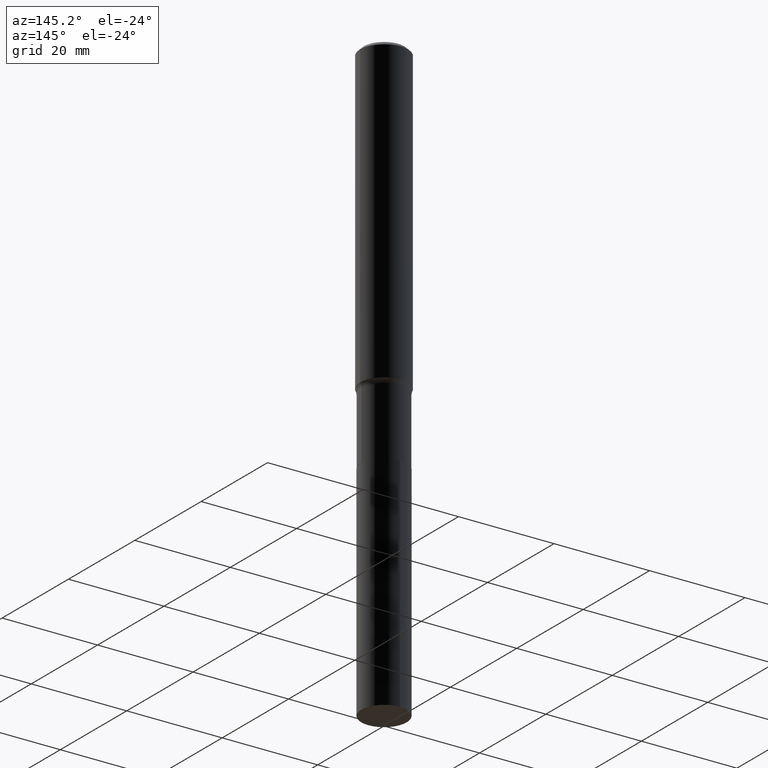
[diagram: clean part render]
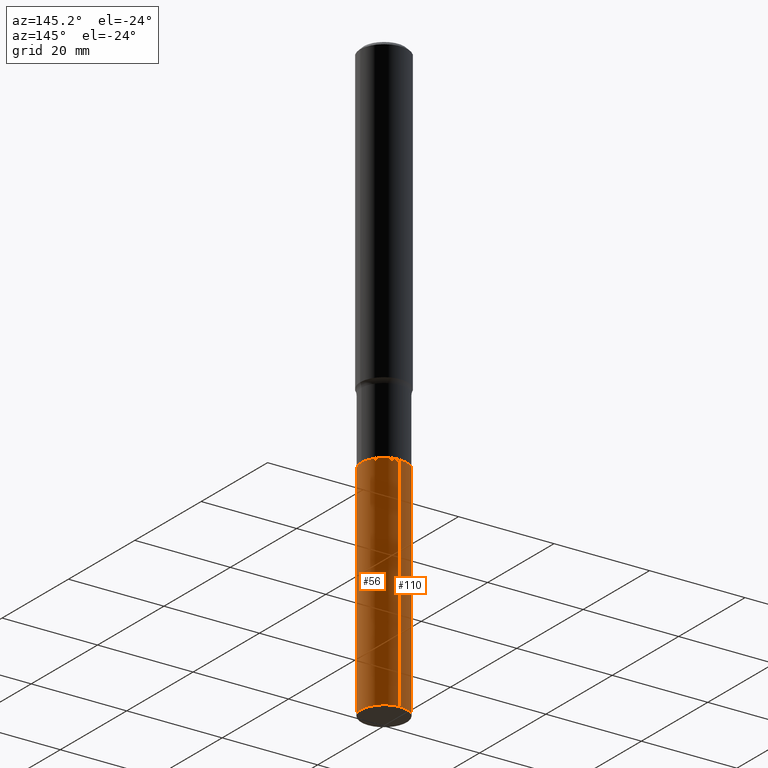
[diagram: same view with one multi-face feature highlighted, each face labeled with its STEP entity id]
A machine part, auxiliary view. The highlighted faces form ONE feature: a constant-radius fillet chain: 2 tangent blend faces with common blend radius 4.7498 mm. The faces share edges in the B-rep.
Their STEP definitions:
[1] entity #56 (Cylinder):
#3 = CARTESIAN_POINT ( 'NONE',  ( -1.305814020727256468E-15, -0.1870000000000107965, -3.090299999999999159 ) ) ;
#4 = DIRECTION ( 'NONE',  ( -6.982962677686266711E-15, -1.000000000000000000, 2.921762560068730595E-15 ) ) ;
#6 = AXIS2_PLACEMENT_3D ( 'NONE', #420, #249, #244 ) ;
#24 = EDGE_CURVE ( 'NONE', #284, #422, #31, .T. ) ;
#28 = EDGE_CURVE ( 'NONE', #422, #200, #141, .T. ) ;
#29 = FACE_OUTER_BOUND ( 'NONE', #409, .T. ) ;
#31 = CIRCLE ( 'NONE', #6, 0.1869999999999999996 ) ;
#36 = CARTESIAN_POINT ( 'NONE',  ( 1.328714915871507843E-15, 0.1869999999999892304, -3.090300000000000047 ) ) ;
#42 = CARTESIAN_POINT ( 'NONE',  ( 7.557232251753925568E-29, -1.078972478142697173E-14, -3.090299999999999603 ) ) ;
#54 = CIRCLE ( 'NONE', #132, 0.1869999999999999996 ) ;
#56 = ADVANCED_FACE ( 'NONE', ( #29 ), #172, .T. ) ;
#77 = DIRECTION ( 'NONE',  ( -2.445466127994541976E-29, 3.491485174164510259E-15, 1.000000000000000000 ) ) ;
#115 = DIRECTION ( 'NONE',  ( -2.445466127994541976E-29, 3.491485174164510259E-15, 1.000000000000000000 ) ) ;
#118 = ORIENTED_EDGE ( 'NONE', *, *, #28, .T. ) ;
#120 = ORIENTED_EDGE ( 'NONE', *, *, #24, .T. ) ;
#122 = VERTEX_POINT ( 'NONE', #3 ) ;
#123 = VECTOR ( 'NONE', #115, 39.37007874015748143 ) ;
#132 = AXIS2_PLACEMENT_3D ( 'NONE', #42, #77, #4 ) ;
#141 = LINE ( 'NONE', #425, #166 ) ;
#166 = VECTOR ( 'NONE', #311, 39.37007874015748143 ) ;
#170 = CARTESIAN_POINT ( 'NONE',  ( 7.557232251753925568E-29, -1.078972478142697173E-14, -3.090299999999999603 ) ) ;
#172 = CYLINDRICAL_SURFACE ( 'NONE', #299, 0.1869999999999999996 ) ;
#200 = VERTEX_POINT ( 'NONE', #36 ) ;
#218 = CARTESIAN_POINT ( 'NONE',  ( -1.305814020727211503E-15, -0.1870000000000171803, -4.921299999999999564 ) ) ;
#244 = DIRECTION ( 'NONE',  ( -6.982962677686266711E-15, -1.000000000000000000, 5.843525120137461189E-15 ) ) ;
#249 = DIRECTION ( 'NONE',  ( -2.445466127994541976E-29, 3.491485174164510259E-15, 1.000000000000000000 ) ) ;
#263 = CARTESIAN_POINT ( 'NONE',  ( 1.328714915871484966E-15, 0.1869999999999828466, -4.921300000000002228 ) ) ;
#264 = ORIENTED_EDGE ( 'NONE', *, *, #412, .F. ) ;
#284 = VERTEX_POINT ( 'NONE', #218 ) ;
#290 = ORIENTED_EDGE ( 'NONE', *, *, #439, .F. ) ;
#299 = AXIS2_PLACEMENT_3D ( 'NONE', #170, #322, #317 ) ;
#311 = DIRECTION ( 'NONE',  ( -2.445466127994541976E-29, 3.491485174164510259E-15, 1.000000000000000000 ) ) ;
#317 = DIRECTION ( 'NONE',  ( -6.982962677686266711E-15, -1.000000000000000000, 2.921762560068730595E-15 ) ) ;
#322 = DIRECTION ( 'NONE',  ( -2.445466127994541976E-29, 3.491485174164510259E-15, 1.000000000000000000 ) ) ;
#333 = LINE ( 'NONE', #428, #123 ) ;
#409 = EDGE_LOOP ( 'NONE', ( #120, #118, #264, #290 ) ) ;
#412 = EDGE_CURVE ( 'NONE', #122, #200, #54, .T. ) ;
#420 = CARTESIAN_POINT ( 'NONE',  ( 1.203488073211193522E-28, -1.718263413532219501E-14, -4.921300000000000452 ) ) ;
#422 = VERTEX_POINT ( 'NONE', #263 ) ;
#425 = CARTESIAN_POINT ( 'NONE',  ( 1.328714915871462681E-15, 0.1869999999999892304, -3.090300000000000047 ) ) ;
#428 = CARTESIAN_POINT ( 'NONE',  ( -1.305814020727256468E-15, -0.1870000000000107965, -3.090299999999999159 ) ) ;
#439 = EDGE_CURVE ( 'NONE', #284, #122, #333, .T. ) ;
[2] entity #110 (Cylinder):
#3 = CARTESIAN_POINT ( 'NONE',  ( -1.305814020727256468E-15, -0.1870000000000107965, -3.090299999999999159 ) ) ;
#7 = AXIS2_PLACEMENT_3D ( 'NONE', #398, #324, #463 ) ;
#28 = EDGE_CURVE ( 'NONE', #422, #200, #141, .T. ) ;
#34 = DIRECTION ( 'NONE',  ( -2.445466127994541976E-29, 3.491485174164510259E-15, 1.000000000000000000 ) ) ;
#36 = CARTESIAN_POINT ( 'NONE',  ( 1.328714915871507843E-15, 0.1869999999999892304, -3.090300000000000047 ) ) ;
#59 = ORIENTED_EDGE ( 'NONE', *, *, #28, .F. ) ;
#72 = CYLINDRICAL_SURFACE ( 'NONE', #214, 0.1869999999999999996 ) ;
#104 = CARTESIAN_POINT ( 'NONE',  ( 1.203488073211193522E-28, -1.718263413532219501E-14, -4.921300000000000452 ) ) ;
#107 = AXIS2_PLACEMENT_3D ( 'NONE', #104, #34, #179 ) ;
#108 = DIRECTION ( 'NONE',  ( -2.445466127994541976E-29, 3.491485174164510259E-15, 1.000000000000000000 ) ) ;
#110 = ADVANCED_FACE ( 'NONE', ( #180 ), #72, .T. ) ;
#115 = DIRECTION ( 'NONE',  ( -2.445466127994541976E-29, 3.491485174164510259E-15, 1.000000000000000000 ) ) ;
#122 = VERTEX_POINT ( 'NONE', #3 ) ;
#123 = VECTOR ( 'NONE', #115, 39.37007874015748143 ) ;
#141 = LINE ( 'NONE', #425, #166 ) ;
#153 = ORIENTED_EDGE ( 'NONE', *, *, #439, .T. ) ;
#166 = VECTOR ( 'NONE', #311, 39.37007874015748143 ) ;
#179 = DIRECTION ( 'NONE',  ( -6.982962677686266711E-15, -1.000000000000000000, 5.843525120137461189E-15 ) ) ;
#180 = FACE_OUTER_BOUND ( 'NONE', #369, .T. ) ;
#200 = VERTEX_POINT ( 'NONE', #36 ) ;
#214 = AXIS2_PLACEMENT_3D ( 'NONE', #294, #108, #393 ) ;
#218 = CARTESIAN_POINT ( 'NONE',  ( -1.305814020727211503E-15, -0.1870000000000171803, -4.921299999999999564 ) ) ;
#255 = CIRCLE ( 'NONE', #107, 0.1869999999999999996 ) ;
#262 = EDGE_CURVE ( 'NONE', #200, #122, #461, .T. ) ;
#263 = CARTESIAN_POINT ( 'NONE',  ( 1.328714915871484966E-15, 0.1869999999999828466, -4.921300000000002228 ) ) ;
#284 = VERTEX_POINT ( 'NONE', #218 ) ;
#294 = CARTESIAN_POINT ( 'NONE',  ( 7.557232251753925568E-29, -1.078972478142697173E-14, -3.090299999999999603 ) ) ;
#303 = ORIENTED_EDGE ( 'NONE', *, *, #446, .T. ) ;
#311 = DIRECTION ( 'NONE',  ( -2.445466127994541976E-29, 3.491485174164510259E-15, 1.000000000000000000 ) ) ;
#320 = ORIENTED_EDGE ( 'NONE', *, *, #262, .F. ) ;
#324 = DIRECTION ( 'NONE',  ( -2.445466127994541976E-29, 3.491485174164510259E-15, 1.000000000000000000 ) ) ;
#333 = LINE ( 'NONE', #428, #123 ) ;
#369 = EDGE_LOOP ( 'NONE', ( #59, #303, #153, #320 ) ) ;
#393 = DIRECTION ( 'NONE',  ( -6.982962677686266711E-15, -1.000000000000000000, 2.921762560068730595E-15 ) ) ;
#398 = CARTESIAN_POINT ( 'NONE',  ( 7.557232251753925568E-29, -1.078972478142697173E-14, -3.090299999999999603 ) ) ;
#422 = VERTEX_POINT ( 'NONE', #263 ) ;
#425 = CARTESIAN_POINT ( 'NONE',  ( 1.328714915871462681E-15, 0.1869999999999892304, -3.090300000000000047 ) ) ;
#428 = CARTESIAN_POINT ( 'NONE',  ( -1.305814020727256468E-15, -0.1870000000000107965, -3.090299999999999159 ) ) ;
#439 = EDGE_CURVE ( 'NONE', #284, #122, #333, .T. ) ;
#446 = EDGE_CURVE ( 'NONE', #422, #284, #255, .T. ) ;
#461 = CIRCLE ( 'NONE', #7, 0.1869999999999999996 ) ;
#463 = DIRECTION ( 'NONE',  ( -6.982962677686266711E-15, -1.000000000000000000, 2.921762560068730595E-15 ) ) ;